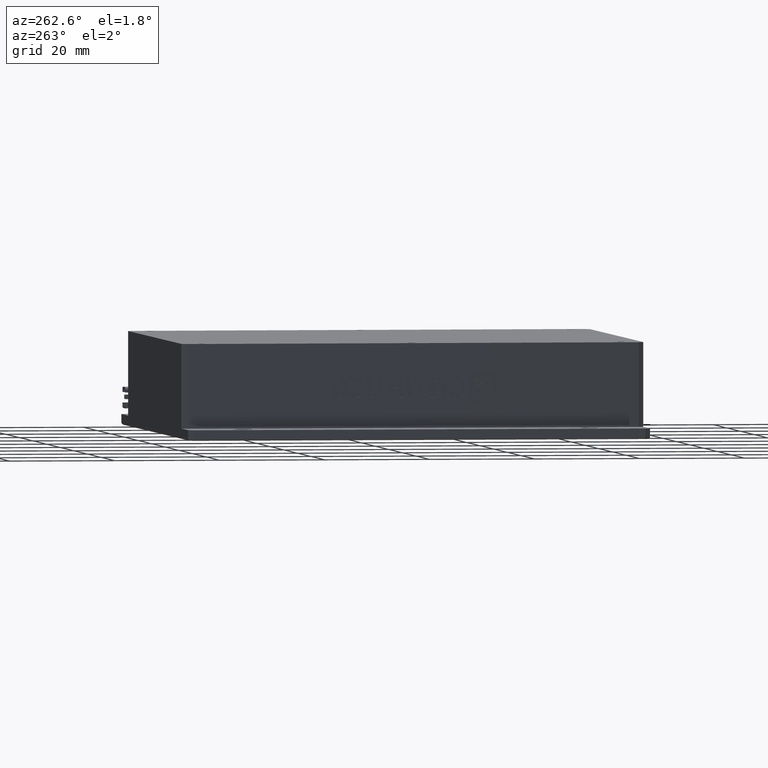
[diagram: clean part render]
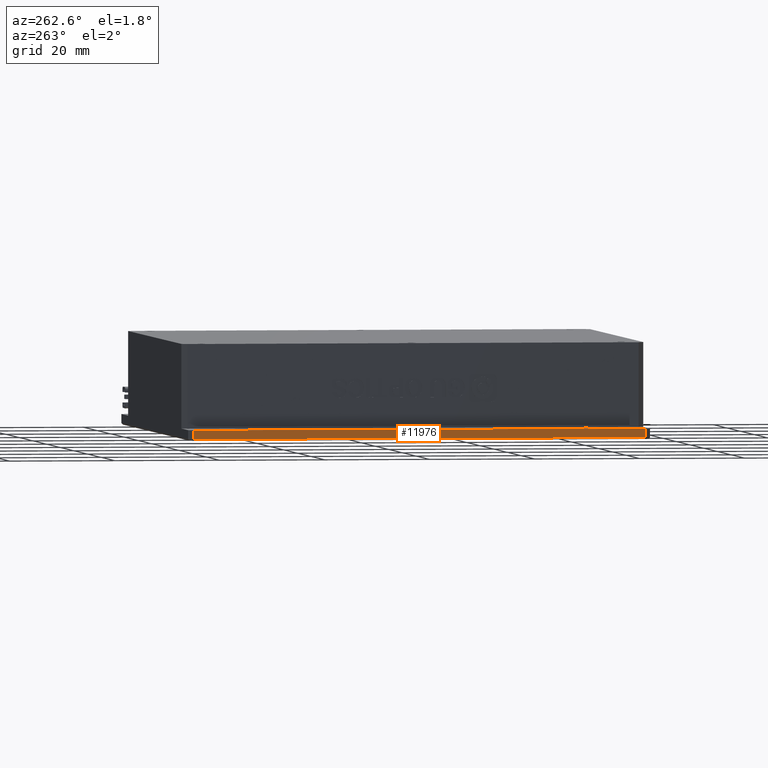
[diagram: same view with one face highlighted and labeled with its STEP entity id]
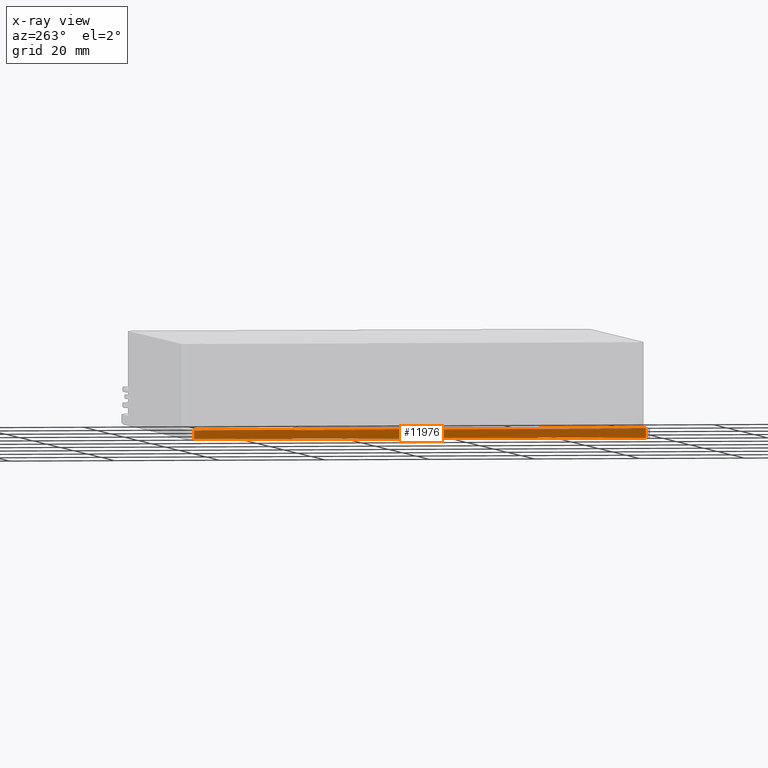
[diagram: x-ray of the same camera — body ghosted, the highlighted face saturated]
A machine part, auxiliary view. The second image highlights one B-rep face of the part: STEP entity #11976.
The next image is the same camera in x-ray: the body ghosted, the highlighted face saturated — about 0% of this face is hidden behind the body in this view.
In plain terms, the highlighted planar face has unit normal (1, 0, 0).
Its self-contained STEP definition (entity closure, byte-faithful):
#599 = VECTOR ( 'NONE', #3263, 1000.000000000000000 ) ;
#782 = EDGE_CURVE ( 'NONE', #7947, #8647, #15482, .T. ) ;
#846 = ORIENTED_EDGE ( 'NONE', *, *, #782, .F. ) ;
#861 = EDGE_CURVE ( 'NONE', #7947, #5493, #17013, .T. ) ;
#1027 = LINE ( 'NONE', #1896, #599 ) ;
#1520 = EDGE_CURVE ( 'NONE', #8647, #16739, #11402, .T. ) ;
#1896 = CARTESIAN_POINT ( 'NONE',  ( -32.94768995799928000, 38.79992363497522200, -4.547577592273199800E-012 ) ) ;
#2171 = EDGE_LOOP ( 'NONE', ( #16676, #846, #4003, #13991 ) ) ;
#2221 = CARTESIAN_POINT ( 'NONE',  ( -32.94768995799925900, 38.79992363497523700, -1.700000000004552100 ) ) ;
#2503 = CARTESIAN_POINT ( 'NONE',  ( -32.94768995799925900, -47.20007636502478500, -4.547577592273199800E-012 ) ) ;
#2794 = VECTOR ( 'NONE', #2837, 1000.000000000000000 ) ;
#2837 = DIRECTION ( 'NONE',  ( 0.0000000000000000000, 1.000000000000000000, 0.0000000000000000000 ) ) ;
#2839 = CARTESIAN_POINT ( 'NONE',  ( -32.94768995799925900, -47.20007636502478500, -1.700000000004549900 ) ) ;
#3263 = DIRECTION ( 'NONE',  ( 0.0000000000000000000, -0.0000000000000000000, -1.000000000000000000 ) ) ;
#4003 = ORIENTED_EDGE ( 'NONE', *, *, #861, .T. ) ;
#4270 = CARTESIAN_POINT ( 'NONE',  ( -32.94768995799925900, 39.79992363497521500, -4.547577592273199800E-012 ) ) ;
#4356 = CARTESIAN_POINT ( 'NONE',  ( -32.94768995799925900, -48.20007636502478500, -4.547577592273199800E-012 ) ) ;
#4614 = FACE_OUTER_BOUND ( 'NONE', #2171, .T. ) ;
#5493 = VERTEX_POINT ( 'NONE', #5984 ) ;
#5728 = DIRECTION ( 'NONE',  ( 0.0000000000000000000, 0.0000000000000000000, -1.000000000000000000 ) ) ;
#5750 = CARTESIAN_POINT ( 'NONE',  ( -32.94768995799925900, -47.20007636502478500, -4.547577592273199800E-012 ) ) ;
#5934 = DIRECTION ( 'NONE',  ( 0.0000000000000000000, 0.0000000000000000000, -1.000000000000000000 ) ) ;
#5984 = CARTESIAN_POINT ( 'NONE',  ( -32.94768995799926600, 38.79992363497523700, -4.547577592273199800E-012 ) ) ;
#7729 = VECTOR ( 'NONE', #9211, 1000.000000000000000 ) ;
#7838 = CARTESIAN_POINT ( 'NONE',  ( -32.94768995799925900, -48.20007636502478500, -1.700000000004553000 ) ) ;
#7947 = VERTEX_POINT ( 'NONE', #2503 ) ;
#8172 = VECTOR ( 'NONE', #5934, 1000.000000000000000 ) ;
#8647 = VERTEX_POINT ( 'NONE', #2839 ) ;
#9211 = DIRECTION ( 'NONE',  ( -0.0000000000000000000, 1.000000000000000000, 0.0000000000000000000 ) ) ;
#9415 = AXIS2_PLACEMENT_3D ( 'NONE', #4356, #13977, #5728 ) ;
#11402 = LINE ( 'NONE', #7838, #7729 ) ;
#11976 = ADVANCED_FACE ( 'NONE', ( #4614 ), #13922, .F. ) ;
#13922 = PLANE ( 'NONE',  #9415 ) ;
#13977 = DIRECTION ( 'NONE',  ( 1.000000000000000000, 0.0000000000000000000, 0.0000000000000000000 ) ) ;
#13991 = ORIENTED_EDGE ( 'NONE', *, *, #17229, .T. ) ;
#15482 = LINE ( 'NONE', #5750, #8172 ) ;
#16676 = ORIENTED_EDGE ( 'NONE', *, *, #1520, .F. ) ;
#16739 = VERTEX_POINT ( 'NONE', #2221 ) ;
#17013 = LINE ( 'NONE', #4270, #2794 ) ;
#17229 = EDGE_CURVE ( 'NONE', #5493, #16739, #1027, .T. ) ;